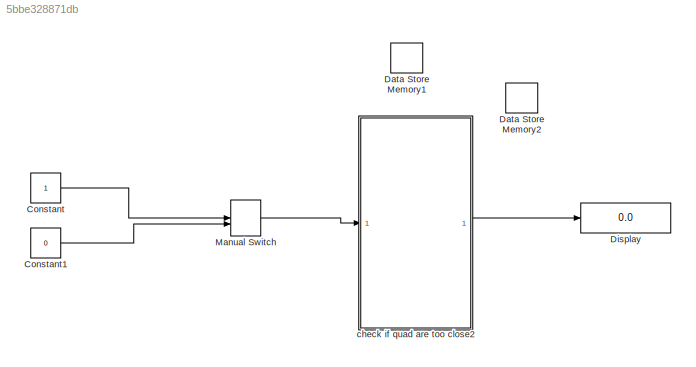
MODEL slx_5bbe328871db
KIND model
BLOCK [Constant] Constant
BLOCK [Constant] Constant1
  Value = 0
BLOCK [DataStoreMemory] Data Store Memory1
  DataStoreName = B
  OutDataTypeStr = int8
  SignalType = real
BLOCK [DataStoreMemory] Data Store Memory2
  DataStoreName = c
  OutDataTypeStr = int8
  SignalType = real
BLOCK [Display] Display
  Decimation = 1
  Lockdown = off
  Ports = [1]
BLOCK [ManualSwitch] Manual Switch
  CurrentSetting = 0
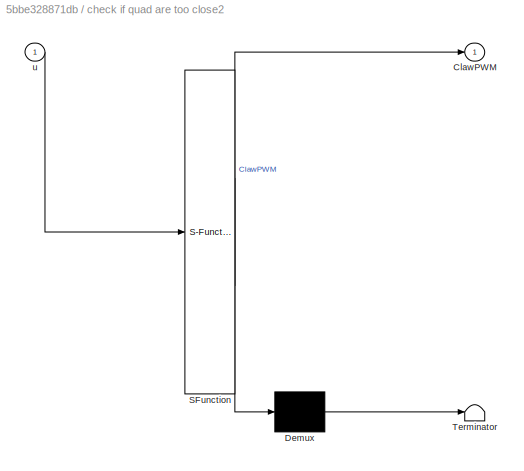
BLOCK [SubSystem] check if quad are too close2
  ErrorFcn = Stateflow.Translate.translate
  FunctionWithSeparateData = off
  MaskHideContents = off
  MinAlgLoopOccurrences = off
  Opaque = off
  PermitHierarchicalResolution = ExplicitOnly
  Ports = [1, 1]
  PropExecContextOutsideSubsystem = off
  RTWSystemCode = Auto
  RequestExecContextInheritance = off
  SFBlockType = MATLAB Function
  TreatAsAtomicUnit = on
BLOCK [Demux] check if quad are too close2/ Demux 
  Outputs = 1
  Ports = [1, 1]
BLOCK [S-Function] check if quad are too close2/ SFunction 
  EnableBusSupport = on
  FunctionName = sf_sfun
  PortCounts = [1 2]
  Ports = [1, 2]
  Tag = Stateflow S-Function untitled2 2
BLOCK [Terminator] check if quad are too close2/ Terminator 
BLOCK [Outport] check if quad are too close2/ClawPWM
  IconDisplay = Port number
BLOCK [Inport] check if quad are too close2/u
  IconDisplay = Port number
LINE Constant1:1 -> Manual Switch:2
LINE Constant:1 -> Manual Switch:1
LINE Manual Switch:1 -> check if quad are too close2:1
LINE check if quad are too close2:1 -> Display:1
